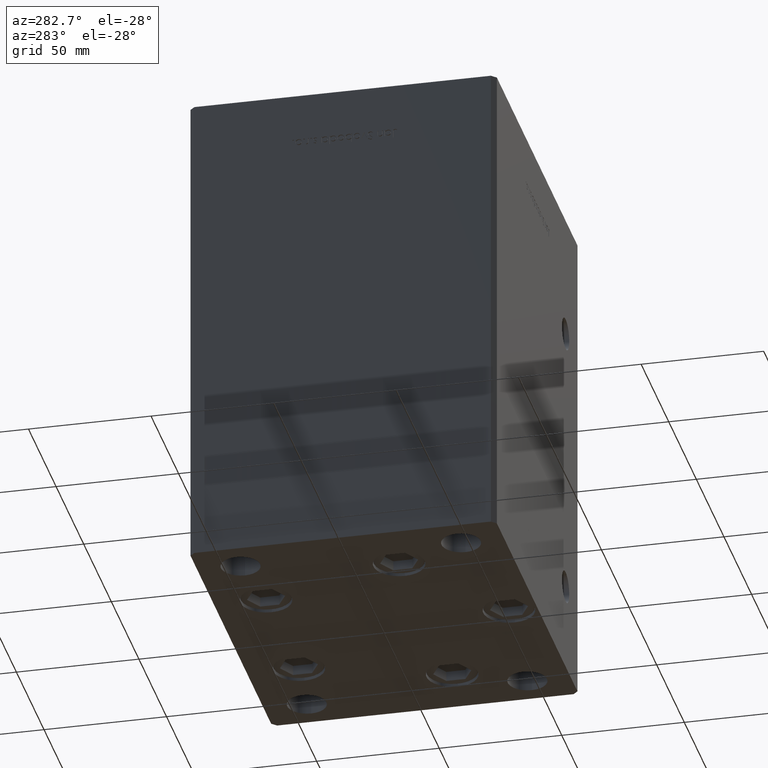
[diagram: clean part render]
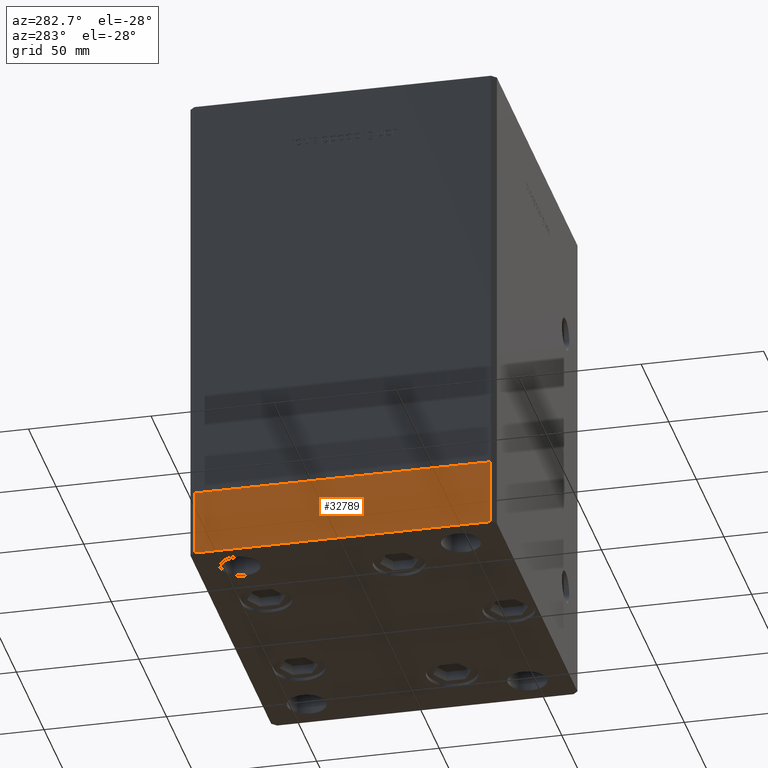
[diagram: same view with one face highlighted and labeled with its STEP entity id]
A machine part, auxiliary view. The second image highlights one B-rep face of the part: STEP entity #32789.
In plain terms, the highlighted planar face has unit normal (-1, 0, 0).
Its self-contained STEP definition (entity closure, byte-faithful):
#1326 = ORIENTED_EDGE ( 'NONE', *, *, #34427, .F. ) ;
#1894 = VECTOR ( 'NONE', #13112, 1000.000000000000000 ) ;
#2808 = DIRECTION ( 'NONE',  ( 1.000000000000000000, 6.881547673296424104E-16, -0.000000000000000000 ) ) ;
#3845 = CARTESIAN_POINT ( 'NONE',  ( 75.00000000000001421, -60.50000000000000711, 0.000000000000000000 ) ) ;
#4264 = ORIENTED_EDGE ( 'NONE', *, *, #17445, .F. ) ;
#4676 = LINE ( 'NONE', #29172, #1894 ) ;
#7050 = AXIS2_PLACEMENT_3D ( 'NONE', #42594, #2808, #23344 ) ;
#9570 = LINE ( 'NONE', #16959, #46769 ) ;
#11660 = ORIENTED_EDGE ( 'NONE', *, *, #45238, .T. ) ;
#12543 = DIRECTION ( 'NONE',  ( -6.881547673296424104E-16, 1.000000000000000000, 0.000000000000000000 ) ) ;
#13112 = DIRECTION ( 'NONE',  ( 0.000000000000000000, 0.000000000000000000, 1.000000000000000000 ) ) ;
#16959 = CARTESIAN_POINT ( 'NONE',  ( 75.00000000000001421, -60.50000000000000711, -27.00000000000000000 ) ) ;
#17241 = VECTOR ( 'NONE', #29724, 1000.000000000000000 ) ;
#17445 = EDGE_CURVE ( 'NONE', #41390, #20383, #39929, .T. ) ;
#18407 = LINE ( 'NONE', #34203, #17241 ) ;
#20383 = VERTEX_POINT ( 'NONE', #32117 ) ;
#22576 = PLANE ( 'NONE',  #7050 ) ;
#22723 = CARTESIAN_POINT ( 'NONE',  ( 75.00000000000001421, -60.50000000000000711, -27.00000000000000000 ) ) ;
#23091 = FACE_OUTER_BOUND ( 'NONE', #37025, .T. ) ;
#23344 = DIRECTION ( 'NONE',  ( -6.881547673296424104E-16, 1.000000000000000000, 0.000000000000000000 ) ) ;
#25292 = VECTOR ( 'NONE', #12543, 1000.000000000000000 ) ;
#25644 = CARTESIAN_POINT ( 'NONE',  ( 74.99999999999992895, 60.50000000000002842, -27.00000000000000000 ) ) ;
#27875 = EDGE_CURVE ( 'NONE', #45266, #20383, #4676, .T. ) ;
#29172 = CARTESIAN_POINT ( 'NONE',  ( 74.99999999999992895, 60.50000000000002842, -27.00000000000000000 ) ) ;
#29724 = DIRECTION ( 'NONE',  ( 0.000000000000000000, 0.000000000000000000, 1.000000000000000000 ) ) ;
#32117 = CARTESIAN_POINT ( 'NONE',  ( 74.99999999999992895, 60.50000000000002842, 0.000000000000000000 ) ) ;
#32789 = ADVANCED_FACE ( 'NONE', ( #23091 ), #22576, .T. ) ;
#34203 = CARTESIAN_POINT ( 'NONE',  ( 75.00000000000001421, -60.50000000000000711, -27.00000000000000000 ) ) ;
#34427 = EDGE_CURVE ( 'NONE', #42167, #41390, #18407, .T. ) ;
#37025 = EDGE_LOOP ( 'NONE', ( #4264, #1326, #11660, #45401 ) ) ;
#39929 = LINE ( 'NONE', #3845, #25292 ) ;
#41390 = VERTEX_POINT ( 'NONE', #51349 ) ;
#42167 = VERTEX_POINT ( 'NONE', #22723 ) ;
#42594 = CARTESIAN_POINT ( 'NONE',  ( 75.00000000000001421, -60.50000000000000711, -27.00000000000000000 ) ) ;
#45238 = EDGE_CURVE ( 'NONE', #42167, #45266, #9570, .T. ) ;
#45266 = VERTEX_POINT ( 'NONE', #25644 ) ;
#45401 = ORIENTED_EDGE ( 'NONE', *, *, #27875, .T. ) ;
#45923 = DIRECTION ( 'NONE',  ( -6.881547673296424104E-16, 1.000000000000000000, 0.000000000000000000 ) ) ;
#46769 = VECTOR ( 'NONE', #45923, 1000.000000000000000 ) ;
#51349 = CARTESIAN_POINT ( 'NONE',  ( 75.00000000000001421, -60.50000000000000711, 0.000000000000000000 ) ) ;